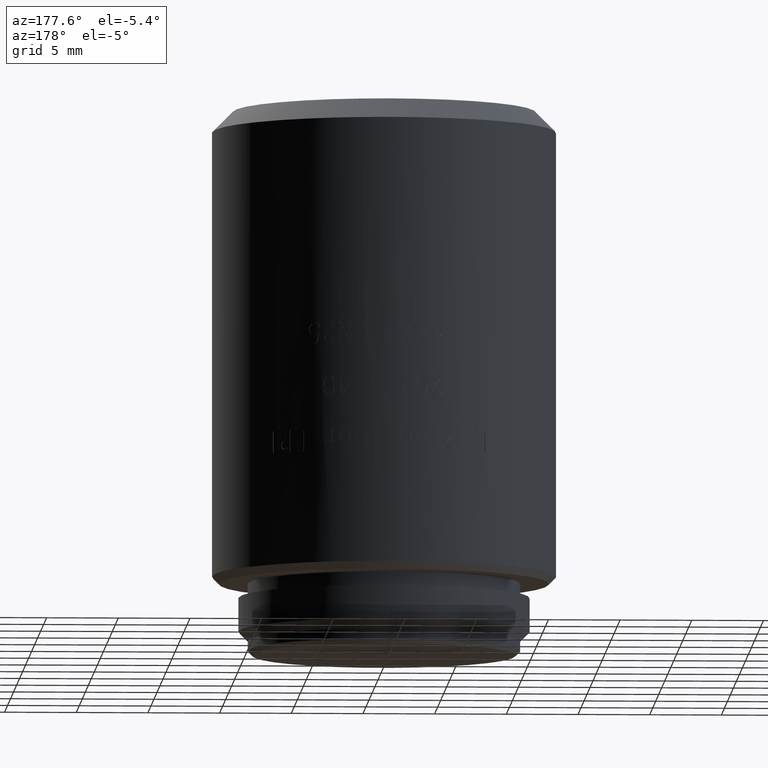
[diagram: clean part render]
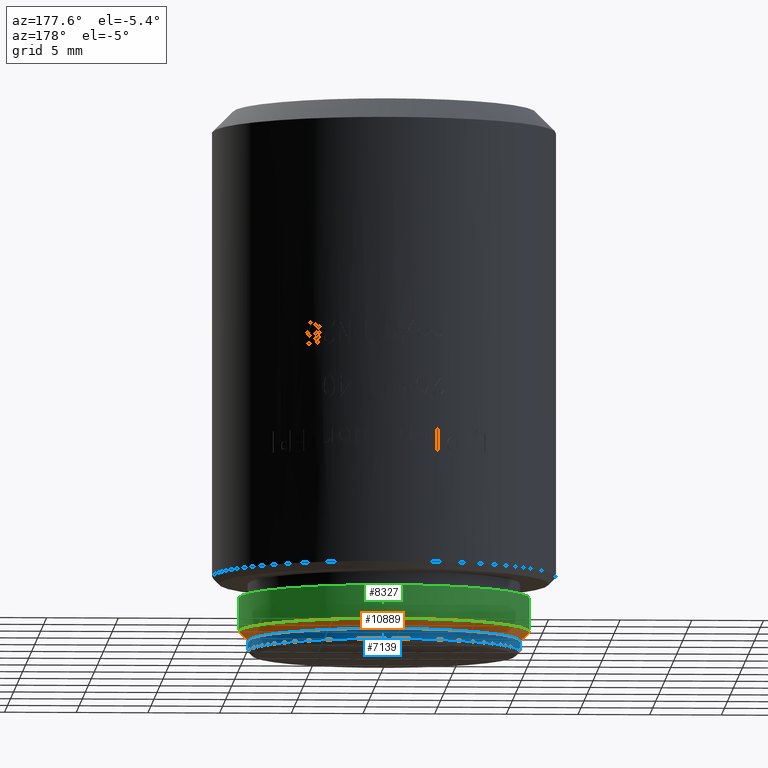
[diagram: same view with three faces highlighted in distinct colors, each labeled with its STEP entity id]
A machine part, auxiliary view with three faces highlighted in distinct colors.
Their STEP definitions:

[orange] entity #10889 — the highlighted conical surface has half-angle 45 deg.
#144 = ORIENTED_EDGE ( 'NONE', *, *, #18037, .T. ) ;
#1025 = LINE ( 'NONE', #21072, #22275 ) ;
#1486 = CARTESIAN_POINT ( 'NONE',  ( 10.16000000000000014, 0.000000000000000000, 1.649999999999999911 ) ) ;
#1608 = DIRECTION ( 'NONE',  ( 0.7071067811865455743, 0.000000000000000000, 0.7071067811865495711 ) ) ;
#1894 = DIRECTION ( 'NONE',  ( 1.000000000000000000, 0.000000000000000000, 0.000000000000000000 ) ) ;
#2627 = DIRECTION ( 'NONE',  ( 0.000000000000000000, 0.000000000000000000, -1.000000000000000000 ) ) ;
#2935 = AXIS2_PLACEMENT_3D ( 'NONE', #5382, #12892, #6948 ) ;
#3216 = VECTOR ( 'NONE', #1608, 1000.000000000000114 ) ;
#3699 = CONICAL_SURFACE ( 'NONE', #6790, 10.16000000000000014, 0.7853981633974456145 ) ;
#4075 = AXIS2_PLACEMENT_3D ( 'NONE', #20843, #2627, #15496 ) ;
#4760 = VERTEX_POINT ( 'NONE', #11556 ) ;
#5382 = CARTESIAN_POINT ( 'NONE',  ( 0.000000000000000000, 0.000000000000000000, 1.649999999999999911 ) ) ;
#5425 = VERTEX_POINT ( 'NONE', #18133 ) ;
#5971 = EDGE_CURVE ( 'NONE', #12523, #4760, #9129, .T. ) ;
#6790 = AXIS2_PLACEMENT_3D ( 'NONE', #7336, #21935, #1894 ) ;
#6948 = DIRECTION ( 'NONE',  ( -1.000000000000000000, 0.000000000000000000, 0.000000000000000000 ) ) ;
#7336 = CARTESIAN_POINT ( 'NONE',  ( 0.000000000000000000, 0.000000000000000000, 1.649999999999999911 ) ) ;
#8412 = DIRECTION ( 'NONE',  ( -0.7071067811865455743, 8.659560562354906974E-17, 0.7071067811865495711 ) ) ;
#8871 = ORIENTED_EDGE ( 'NONE', *, *, #5971, .F. ) ;
#9129 = CIRCLE ( 'NONE', #2935, 10.16000000000000014 ) ;
#10889 = ADVANCED_FACE ( 'NONE', ( #20472 ), #3699, .T. ) ;
#11556 = CARTESIAN_POINT ( 'NONE',  ( -10.16000000000000014, 1.244241147933710864E-15, 1.649999999999999911 ) ) ;
#12348 = VERTEX_POINT ( 'NONE', #20048 ) ;
#12523 = VERTEX_POINT ( 'NONE', #17836 ) ;
#12892 = DIRECTION ( 'NONE',  ( 0.000000000000000000, 0.000000000000000000, 1.000000000000000000 ) ) ;
#14545 = CIRCLE ( 'NONE', #4075, 9.509999999999999787 ) ;
#15496 = DIRECTION ( 'NONE',  ( -1.000000000000000000, 0.000000000000000000, 0.000000000000000000 ) ) ;
#16184 = LINE ( 'NONE', #1486, #3216 ) ;
#16290 = EDGE_LOOP ( 'NONE', ( #19945, #144, #8871, #18381 ) ) ;
#17836 = CARTESIAN_POINT ( 'NONE',  ( 10.16000000000000014, 0.000000000000000000, 1.649999999999999911 ) ) ;
#18037 = EDGE_CURVE ( 'NONE', #5425, #4760, #1025, .T. ) ;
#18133 = CARTESIAN_POINT ( 'NONE',  ( -9.509999999999999787, 1.204440126961422060E-15, 1.000000000000000000 ) ) ;
#18381 = ORIENTED_EDGE ( 'NONE', *, *, #23791, .F. ) ;
#19881 = EDGE_CURVE ( 'NONE', #5425, #12348, #14545, .T. ) ;
#19945 = ORIENTED_EDGE ( 'NONE', *, *, #19881, .F. ) ;
#20048 = CARTESIAN_POINT ( 'NONE',  ( 9.509999999999999787, 0.000000000000000000, 1.000000000000000000 ) ) ;
#20472 = FACE_OUTER_BOUND ( 'NONE', #16290, .T. ) ;
#20843 = CARTESIAN_POINT ( 'NONE',  ( 0.000000000000000000, 0.000000000000000000, 1.000000000000000000 ) ) ;
#21072 = CARTESIAN_POINT ( 'NONE',  ( -10.16000000000000014, 1.244241147933710864E-15, 1.649999999999999911 ) ) ;
#21935 = DIRECTION ( 'NONE',  ( 0.000000000000000000, 0.000000000000000000, 1.000000000000000000 ) ) ;
#22275 = VECTOR ( 'NONE', #8412, 1000.000000000000114 ) ;
#23791 = EDGE_CURVE ( 'NONE', #12348, #12523, #16184, .T. ) ;

[blue] entity #7139 — the highlighted cylindrical surface (partial cylindrical patch) has radius 9.5 mm, axis along (0, 0, -1).
#649 = LINE ( 'NONE', #6209, #16308 ) ;
#1663 = VECTOR ( 'NONE', #3389, 1000.000000000000000 ) ;
#2284 = CARTESIAN_POINT ( 'NONE',  ( 9.500000000000014211, 0.000000000000000000, 0.3000000000000069833 ) ) ;
#2735 = DIRECTION ( 'NONE',  ( -1.000000000000000000, 0.000000000000000000, 0.000000000000000000 ) ) ;
#3031 = CARTESIAN_POINT ( 'NONE',  ( 9.500000000000000000, 1.163414459189985485E-15, 1.000000000000000000 ) ) ;
#3389 = DIRECTION ( 'NONE',  ( 0.000000000000000000, 0.000000000000000000, -1.000000000000000000 ) ) ;
#4280 = DIRECTION ( 'NONE',  ( 0.000000000000000000, 0.000000000000000000, -1.000000000000000000 ) ) ;
#4889 = VERTEX_POINT ( 'NONE', #2284 ) ;
#5495 = CYLINDRICAL_SURFACE ( 'NONE', #14044, 9.500000000000000000 ) ;
#5620 = FACE_OUTER_BOUND ( 'NONE', #22032, .T. ) ;
#6209 = CARTESIAN_POINT ( 'NONE',  ( -9.500000000000000000, 0.000000000000000000, 1.000000000000000000 ) ) ;
#6324 = CIRCLE ( 'NONE', #21074, 9.500000000000000000 ) ;
#7139 = ADVANCED_FACE ( 'NONE', ( #5620 ), #5495, .T. ) ;
#7550 = AXIS2_PLACEMENT_3D ( 'NONE', #21665, #10245, #2735 ) ;
#7655 = EDGE_CURVE ( 'NONE', #4889, #12663, #6324, .T. ) ;
#9485 = EDGE_CURVE ( 'NONE', #10222, #12663, #649, .T. ) ;
#10006 = CARTESIAN_POINT ( 'NONE',  ( -9.500000000000000000, 0.000000000000000000, 1.000000000000000000 ) ) ;
#10222 = VERTEX_POINT ( 'NONE', #10006 ) ;
#10245 = DIRECTION ( 'NONE',  ( 0.000000000000000000, 0.000000000000000000, -1.000000000000000000 ) ) ;
#10356 = ORIENTED_EDGE ( 'NONE', *, *, #7655, .T. ) ;
#11086 = EDGE_CURVE ( 'NONE', #10222, #15754, #22707, .T. ) ;
#11789 = CARTESIAN_POINT ( 'NONE',  ( -9.500000000000014211, 1.163414459189987260E-15, 0.3000000000000069833 ) ) ;
#12663 = VERTEX_POINT ( 'NONE', #11789 ) ;
#12669 = DIRECTION ( 'NONE',  ( -1.000000000000000000, 0.000000000000000000, 0.000000000000000000 ) ) ;
#14044 = AXIS2_PLACEMENT_3D ( 'NONE', #16673, #19970, #12669 ) ;
#15326 = EDGE_CURVE ( 'NONE', #15754, #4889, #21609, .T. ) ;
#15754 = VERTEX_POINT ( 'NONE', #23492 ) ;
#15763 = ORIENTED_EDGE ( 'NONE', *, *, #9485, .F. ) ;
#16308 = VECTOR ( 'NONE', #4280, 1000.000000000000000 ) ;
#16673 = CARTESIAN_POINT ( 'NONE',  ( 0.000000000000000000, 0.000000000000000000, 1.000000000000000000 ) ) ;
#16889 = CARTESIAN_POINT ( 'NONE',  ( 0.000000000000000000, 0.000000000000000000, 0.3000000000000069833 ) ) ;
#17131 = DIRECTION ( 'NONE',  ( 0.000000000000000000, 0.000000000000000000, 1.000000000000000000 ) ) ;
#18063 = ORIENTED_EDGE ( 'NONE', *, *, #15326, .T. ) ;
#19857 = ORIENTED_EDGE ( 'NONE', *, *, #11086, .T. ) ;
#19970 = DIRECTION ( 'NONE',  ( 0.000000000000000000, 0.000000000000000000, -1.000000000000000000 ) ) ;
#21074 = AXIS2_PLACEMENT_3D ( 'NONE', #16889, #17131, #22844 ) ;
#21609 = LINE ( 'NONE', #3031, #1663 ) ;
#21665 = CARTESIAN_POINT ( 'NONE',  ( 0.000000000000000000, 0.000000000000000000, 1.000000000000000000 ) ) ;
#22032 = EDGE_LOOP ( 'NONE', ( #19857, #18063, #10356, #15763 ) ) ;
#22707 = CIRCLE ( 'NONE', #7550, 9.500000000000000000 ) ;
#22844 = DIRECTION ( 'NONE',  ( 1.000000000000000000, 0.000000000000000000, 0.000000000000000000 ) ) ;
#23492 = CARTESIAN_POINT ( 'NONE',  ( 9.500000000000000000, 1.163414459189985485E-15, 1.000000000000000000 ) ) ;

[green] entity #8327 — the highlighted cylindrical surface (partial cylindrical patch) has radius 10.16 mm, axis along (0, 0, -1).
#165 = EDGE_CURVE ( 'NONE', #12158, #4760, #15305, .T. ) ;
#445 = CYLINDRICAL_SURFACE ( 'NONE', #23789, 10.16000000000000014 ) ;
#873 = CIRCLE ( 'NONE', #10933, 10.16000000000000014 ) ;
#1963 = VERTEX_POINT ( 'NONE', #20329 ) ;
#2149 = DIRECTION ( 'NONE',  ( 0.000000000000000000, 0.000000000000000000, -1.000000000000000000 ) ) ;
#2189 = DIRECTION ( 'NONE',  ( 0.000000000000000000, 0.000000000000000000, -1.000000000000000000 ) ) ;
#2577 = CARTESIAN_POINT ( 'NONE',  ( 0.000000000000000000, 0.000000000000000000, 4.000000000000000000 ) ) ;
#2935 = AXIS2_PLACEMENT_3D ( 'NONE', #5382, #12892, #6948 ) ;
#4760 = VERTEX_POINT ( 'NONE', #11556 ) ;
#5382 = CARTESIAN_POINT ( 'NONE',  ( 0.000000000000000000, 0.000000000000000000, 1.649999999999999911 ) ) ;
#5971 = EDGE_CURVE ( 'NONE', #12523, #4760, #9129, .T. ) ;
#6109 = DIRECTION ( 'NONE',  ( 0.000000000000000000, 0.000000000000000000, -1.000000000000000000 ) ) ;
#6546 = DIRECTION ( 'NONE',  ( -1.000000000000000000, 0.000000000000000000, 0.000000000000000000 ) ) ;
#6616 = CARTESIAN_POINT ( 'NONE',  ( -10.16000000000000014, 0.000000000000000000, 5.000000000000000000 ) ) ;
#6948 = DIRECTION ( 'NONE',  ( -1.000000000000000000, 0.000000000000000000, 0.000000000000000000 ) ) ;
#7129 = VECTOR ( 'NONE', #2189, 1000.000000000000000 ) ;
#8327 = ADVANCED_FACE ( 'NONE', ( #17079 ), #445, .T. ) ;
#8431 = EDGE_LOOP ( 'NONE', ( #9181, #23347, #23039, #17764 ) ) ;
#9129 = CIRCLE ( 'NONE', #2935, 10.16000000000000014 ) ;
#9181 = ORIENTED_EDGE ( 'NONE', *, *, #13808, .F. ) ;
#9734 = LINE ( 'NONE', #17167, #21842 ) ;
#9961 = DIRECTION ( 'NONE',  ( 0.000000000000000000, 0.000000000000000000, 1.000000000000000000 ) ) ;
#10933 = AXIS2_PLACEMENT_3D ( 'NONE', #2577, #9961, #6546 ) ;
#11556 = CARTESIAN_POINT ( 'NONE',  ( -10.16000000000000014, 1.244241147933710864E-15, 1.649999999999999911 ) ) ;
#12158 = VERTEX_POINT ( 'NONE', #21555 ) ;
#12523 = VERTEX_POINT ( 'NONE', #17836 ) ;
#12892 = DIRECTION ( 'NONE',  ( 0.000000000000000000, 0.000000000000000000, 1.000000000000000000 ) ) ;
#13808 = EDGE_CURVE ( 'NONE', #1963, #12158, #873, .T. ) ;
#15305 = LINE ( 'NONE', #6616, #7129 ) ;
#16653 = EDGE_CURVE ( 'NONE', #1963, #12523, #9734, .T. ) ;
#16959 = DIRECTION ( 'NONE',  ( -1.000000000000000000, 0.000000000000000000, 0.000000000000000000 ) ) ;
#17079 = FACE_OUTER_BOUND ( 'NONE', #8431, .T. ) ;
#17167 = CARTESIAN_POINT ( 'NONE',  ( 10.16000000000000014, 1.244241147933710864E-15, 5.000000000000000000 ) ) ;
#17764 = ORIENTED_EDGE ( 'NONE', *, *, #165, .F. ) ;
#17836 = CARTESIAN_POINT ( 'NONE',  ( 10.16000000000000014, 0.000000000000000000, 1.649999999999999911 ) ) ;
#20329 = CARTESIAN_POINT ( 'NONE',  ( 10.16000000000000014, 1.244241147933710864E-15, 4.000000000000000000 ) ) ;
#20598 = CARTESIAN_POINT ( 'NONE',  ( 0.000000000000000000, 0.000000000000000000, 5.000000000000000000 ) ) ;
#21555 = CARTESIAN_POINT ( 'NONE',  ( -10.16000000000000014, 0.000000000000000000, 4.000000000000000000 ) ) ;
#21842 = VECTOR ( 'NONE', #6109, 1000.000000000000000 ) ;
#23039 = ORIENTED_EDGE ( 'NONE', *, *, #5971, .T. ) ;
#23347 = ORIENTED_EDGE ( 'NONE', *, *, #16653, .T. ) ;
#23789 = AXIS2_PLACEMENT_3D ( 'NONE', #20598, #2149, #16959 ) ;